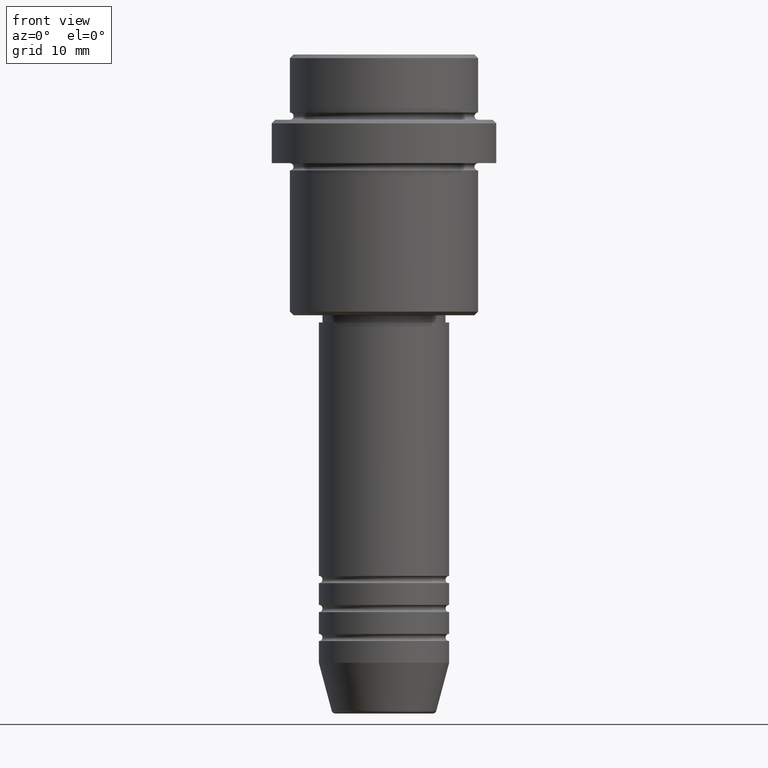
[diagram: clean part render]
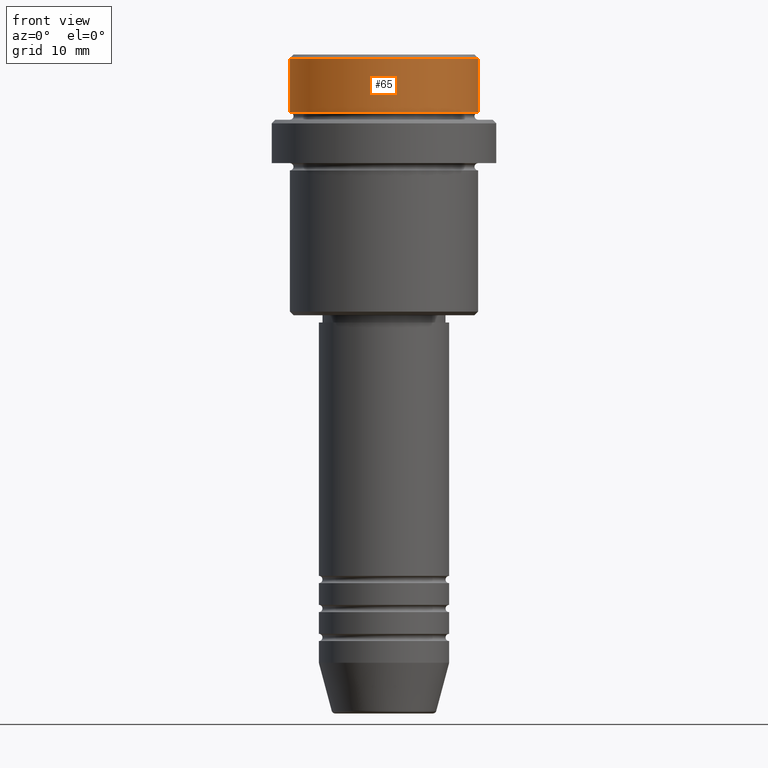
[diagram: same view with one face highlighted and labeled with its STEP entity id]
A machine part, front view. The second image highlights one B-rep face of the part: STEP entity #65.
In plain terms, the highlighted cylindrical surface (partial cylindrical patch) has radius 13 mm, axis along (-0, -0, 1).
Its self-contained STEP definition (entity closure, byte-faithful):
#3 = CARTESIAN_POINT ( 'NONE',  ( 0.000000000000000000, 0.000000000000000000, 0.000000000000000000 ) ) ;
#13 = CARTESIAN_POINT ( 'NONE',  ( -12.99999999999999822, 1.592040838891558898E-15, -0.4999999999999900080 ) ) ;
#14 = ORIENTED_EDGE ( 'NONE', *, *, #1335, .T. ) ;
#65 = ADVANCED_FACE ( 'NONE', ( #648 ), #543, .T. ) ;
#141 = EDGE_CURVE ( 'NONE', #740, #1319, #371, .T. ) ;
#280 = CARTESIAN_POINT ( 'NONE',  ( 12.99999999999999822, 0.000000000000000000, 0.000000000000000000 ) ) ;
#330 = DIRECTION ( 'NONE',  ( -0.000000000000000000, -0.000000000000000000, 1.000000000000000000 ) ) ;
#337 = DIRECTION ( 'NONE',  ( -0.000000000000000000, -0.000000000000000000, 1.000000000000000000 ) ) ;
#371 = LINE ( 'NONE', #1130, #887 ) ;
#376 = EDGE_CURVE ( 'NONE', #395, #1319, #637, .T. ) ;
#382 = LINE ( 'NONE', #280, #776 ) ;
#395 = VERTEX_POINT ( 'NONE', #852 ) ;
#407 = AXIS2_PLACEMENT_3D ( 'NONE', #3, #330, #552 ) ;
#452 = VERTEX_POINT ( 'NONE', #739 ) ;
#543 = CYLINDRICAL_SURFACE ( 'NONE', #407, 12.99999999999999822 ) ;
#552 = DIRECTION ( 'NONE',  ( 1.000000000000000000, 0.000000000000000000, 0.000000000000000000 ) ) ;
#597 = AXIS2_PLACEMENT_3D ( 'NONE', #647, #1399, #958 ) ;
#637 = CIRCLE ( 'NONE', #597, 12.99999999999999822 ) ;
#647 = CARTESIAN_POINT ( 'NONE',  ( 0.000000000000000000, 0.000000000000000000, -0.4999999999999900080 ) ) ;
#648 = FACE_OUTER_BOUND ( 'NONE', #1276, .T. ) ;
#675 = DIRECTION ( 'NONE',  ( -0.000000000000000000, -0.000000000000000000, 1.000000000000000000 ) ) ;
#698 = DIRECTION ( 'NONE',  ( -0.000000000000000000, -0.000000000000000000, 1.000000000000000000 ) ) ;
#732 = EDGE_CURVE ( 'NONE', #452, #395, #382, .T. ) ;
#739 = CARTESIAN_POINT ( 'NONE',  ( 12.99999999999999822, 0.000000000000000000, -7.999999999999998224 ) ) ;
#740 = VERTEX_POINT ( 'NONE', #1151 ) ;
#763 = CARTESIAN_POINT ( 'NONE',  ( 0.000000000000000000, 0.000000000000000000, -7.999999999999998224 ) ) ;
#776 = VECTOR ( 'NONE', #698, 1000.000000000000000 ) ;
#847 = AXIS2_PLACEMENT_3D ( 'NONE', #763, #337, #989 ) ;
#852 = CARTESIAN_POINT ( 'NONE',  ( 12.99999999999999822, 0.000000000000000000, -0.4999999999999900080 ) ) ;
#887 = VECTOR ( 'NONE', #675, 1000.000000000000000 ) ;
#922 = ORIENTED_EDGE ( 'NONE', *, *, #376, .T. ) ;
#958 = DIRECTION ( 'NONE',  ( 1.000000000000000000, 0.000000000000000000, 0.000000000000000000 ) ) ;
#989 = DIRECTION ( 'NONE',  ( 1.000000000000000000, 0.000000000000000000, 0.000000000000000000 ) ) ;
#993 = ORIENTED_EDGE ( 'NONE', *, *, #141, .F. ) ;
#1130 = CARTESIAN_POINT ( 'NONE',  ( -12.99999999999999822, 1.592040838891558898E-15, 0.000000000000000000 ) ) ;
#1151 = CARTESIAN_POINT ( 'NONE',  ( -12.99999999999999822, 1.592040838891558898E-15, -7.999999999999998224 ) ) ;
#1192 = CIRCLE ( 'NONE', #847, 12.99999999999999822 ) ;
#1194 = ORIENTED_EDGE ( 'NONE', *, *, #732, .T. ) ;
#1276 = EDGE_LOOP ( 'NONE', ( #993, #14, #1194, #922 ) ) ;
#1319 = VERTEX_POINT ( 'NONE', #13 ) ;
#1335 = EDGE_CURVE ( 'NONE', #740, #452, #1192, .T. ) ;
#1399 = DIRECTION ( 'NONE',  ( 0.000000000000000000, 0.000000000000000000, -1.000000000000000000 ) ) ;